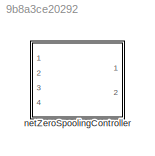
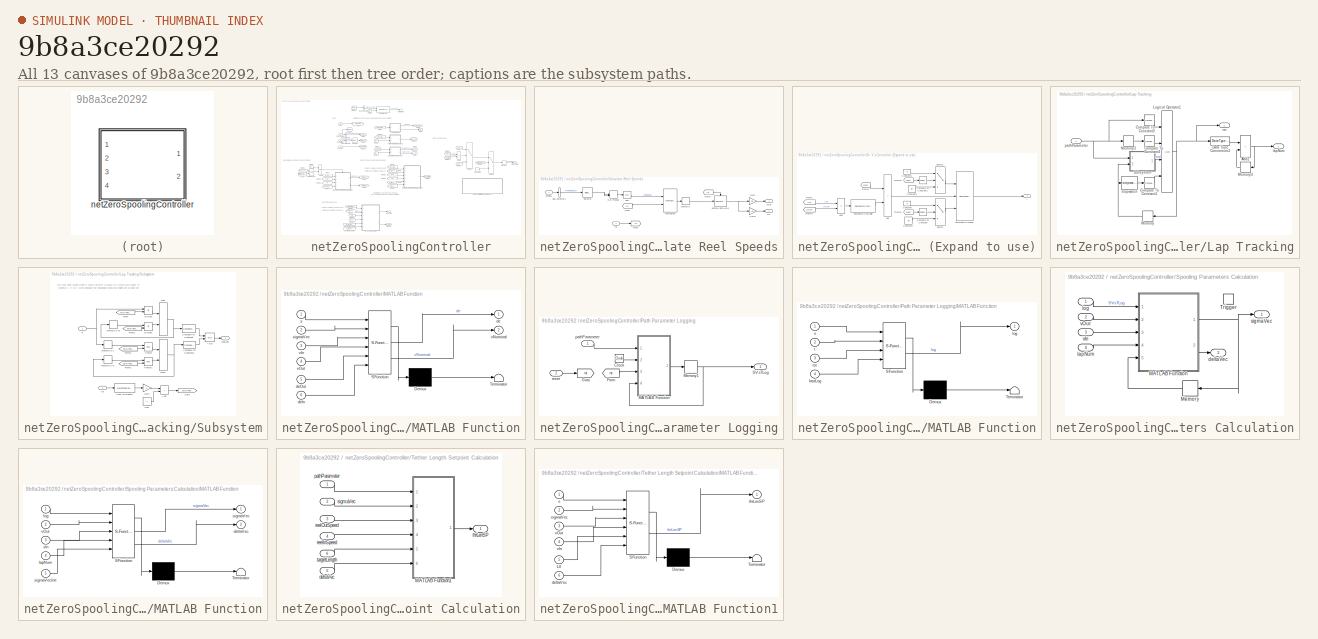
[diagram: thumbnail index - all 13 canvases of the model, root first then tree order]
MODEL slx_9b8a3ce20292
KIND library
CONFIG AbsTol = auto
CONFIG EnableMultiTasking = off
CONFIG FixedStep = auto
CONFIG MaxStep = auto
CONFIG MinStep = auto
CONFIG RelTol = 1e-3
CONFIG SampleTimeConstraint = Unconstrained
CONFIG SolverName = VariableStepAuto
CONFIG StartTime = 0.0
CONFIG StopTime = 10.0
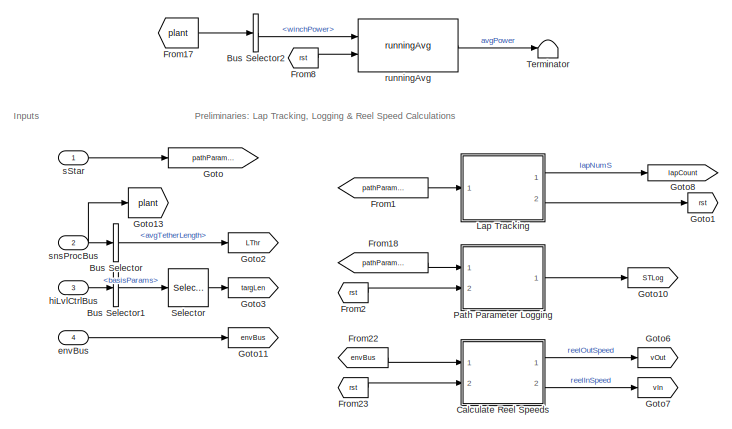
[diagram: netZeroSpoolingController - part 1/3, top center region]
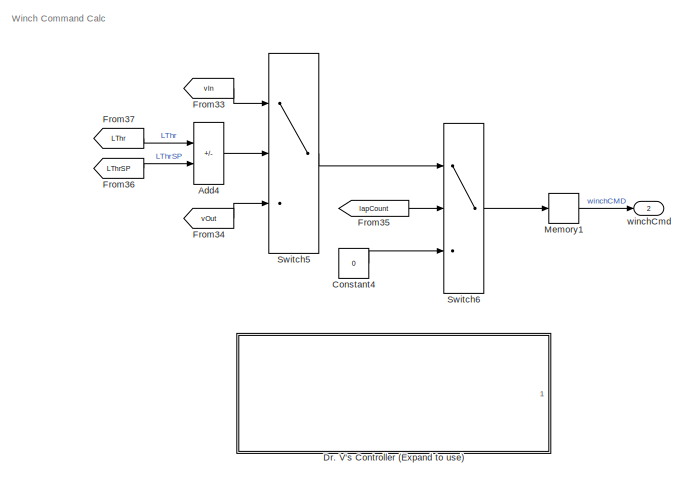
[diagram: netZeroSpoolingController - part 2/3, middle right region]
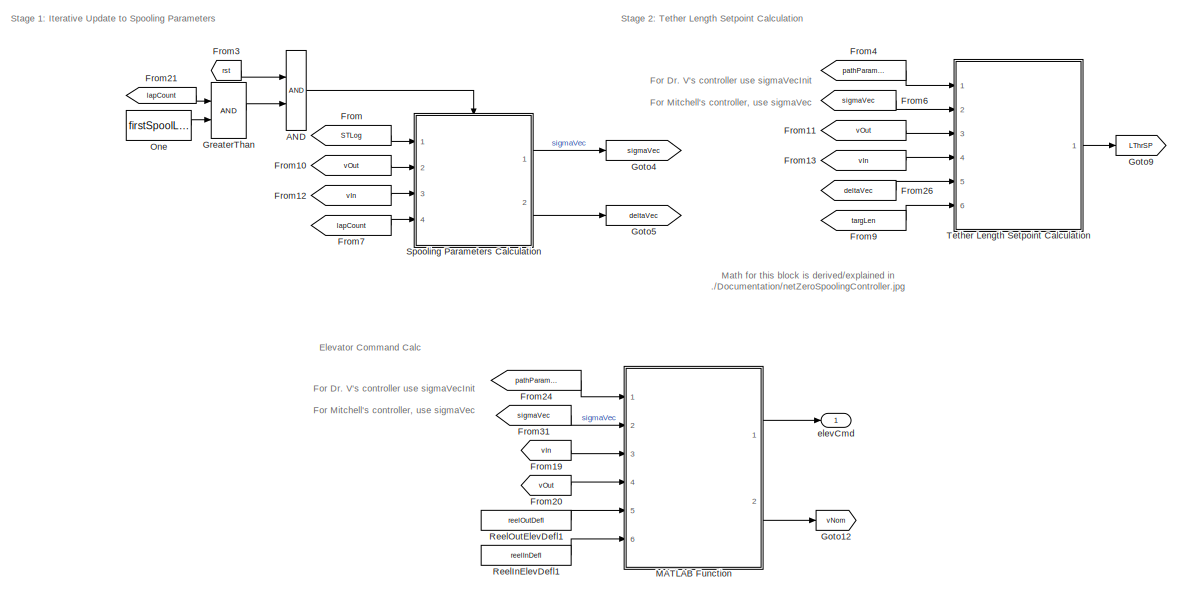
[diagram: netZeroSpoolingController - part 3/3, bottom left region]
BLOCK [SubSystem] netZeroSpoolingController
  Ports = [4, 2]
  RequestExecContextInheritance = off
  VariantControl = strcmpi(SPOOLINGCONTROLLER,'netZeroSpoolingController')
BLOCK [Logic] netZeroSpoolingController/AND
  AllPortsSameDT = off
  OutDataTypeStr = boolean
  Ports = [2, 1]
BLOCK [Sum] netZeroSpoolingController/Add4
  IconShape = rectangular
  Inputs = +-
  Ports = [2, 1]
BLOCK [BusSelector] netZeroSpoolingController/Bus Selector
  OutputSignals = avgTetherLength
  Ports = [1, 1]
BLOCK [BusSelector] netZeroSpoolingController/Bus Selector1
  OutputSignals = basisParams
  Ports = [1, 1]
BLOCK [BusSelector] netZeroSpoolingController/Bus Selector2
  OutputSignals = winchPower
  Ports = [1, 1]
BLOCK [SubSystem] netZeroSpoolingController/Calculate Reel Speeds
  Ports = [2, 2]
  RequestExecContextInheritance = off
BLOCK [BusSelector] netZeroSpoolingController/Calculate Reel Speeds/Bus Selector1
  OutputSignals = vhclFlowVecs
  Ports = [1, 1]
BLOCK [DotProduct] netZeroSpoolingController/Calculate Reel Speeds/Dot Product
  OutDataTypeStr = Inherit: Inherit via internal rule
BLOCK [From] netZeroSpoolingController/Calculate Reel Speeds/From
  GotoTag = rst
BLOCK [From] netZeroSpoolingController/Calculate Reel Speeds/From1
  GotoTag = rst
BLOCK [Gain] netZeroSpoolingController/Calculate Reel Speeds/Gain
  Gain = 1/3
BLOCK [Gain] netZeroSpoolingController/Calculate Reel Speeds/Gain1
  Gain = -0.3
BLOCK [Goto] netZeroSpoolingController/Calculate Reel Speeds/Goto
  GotoTag = rst
BLOCK [Memory] netZeroSpoolingController/Calculate Reel Speeds/Memory1
BLOCK [Reference] netZeroSpoolingController/Calculate Reel Speeds/Sample and Hold  REF=dspsigops/Sample
and Hold
  Ports = [1, 1, 0, 1]
  SourceBlock = dspsigops/Sample\nand Hold
  SourceProductBaseCode = DS
  SourceType = Sample and Hold
BLOCK [Selector] netZeroSpoolingController/Calculate Reel Speeds/Selector
  IndexOptions = Select all,Index vector (dialog)
  Indices = [1 3],5
  InputPortWidth = 3
  NumberOfDimensions = 2
  OutputSizes = 1,1
  Ports = [1, 1]
BLOCK [Sqrt] netZeroSpoolingController/Calculate Reel Speeds/Sqrt
BLOCK [Inport] netZeroSpoolingController/Calculate Reel Speeds/envBus
BLOCK [Inport] netZeroSpoolingController/Calculate Reel Speeds/rst
  Port = 2
BLOCK [Reference] netZeroSpoolingController/Calculate Reel Speeds/runningAvg  REF=runningAvg_ul/runningAvg
  Ports = [2, 1]
  SourceBlock = runningAvg_ul/runningAvg
  SourceType = SubSystem
BLOCK [Outport] netZeroSpoolingController/Calculate Reel Speeds/vIn
  Port = 2
  VectorParamsAs1DForOutWhenUnconnected = off
BLOCK [Outport] netZeroSpoolingController/Calculate Reel Speeds/vOut
  VectorParamsAs1DForOutWhenUnconnected = off
BLOCK [Constant] netZeroSpoolingController/Constant4
  Value = 0
BLOCK [SubSystem] netZeroSpoolingController/Dr. V's Controller (Expand to use)
  Commented = on
  Ports = [0, 1]
  RequestExecContextInheritance = off
BLOCK [Sum] netZeroSpoolingController/Dr. V's Controller (Expand to use)/Add
  IconShape = rectangular
  Ports = [2, 1]
BLOCK [Sum] netZeroSpoolingController/Dr. V's Controller (Expand to use)/Add1
  IconShape = rectangular
  Inputs = -+
  Ports = [2, 1]
BLOCK [Reference] netZeroSpoolingController/Dr. V's Controller (Expand to use)/Compare To Constant  REF=simulink/Logic and Bit
Operations/Compare
To Constant
  Ports = [1, 1]
  SourceBlock = simulink/Logic and Bit\nOperations/Compare\nTo Constant
  SourceProductBaseCode = SL
  SourceType = Compare To Constant
BLOCK [Reference] netZeroSpoolingController/Dr. V's Controller (Expand to use)/Compare To Constant1  REF=simulink/Logic and Bit
Operations/Compare
To Constant
  Ports = [1, 1]
  SourceBlock = simulink/Logic and Bit\nOperations/Compare\nTo Constant
  SourceProductBaseCode = SL
  SourceType = Compare To Constant
BLOCK [Constant] netZeroSpoolingController/Dr. V's Controller (Expand to use)/Constant
  Value = 0
BLOCK [Constant] netZeroSpoolingController/Dr. V's Controller (Expand to use)/Constant1
  Value = 0
BLOCK [Constant] netZeroSpoolingController/Dr. V's Controller (Expand to use)/Constant6
  Value = inf
BLOCK [Constant] netZeroSpoolingController/Dr. V's Controller (Expand to use)/Constant7
  Value = -inf
BLOCK [From] netZeroSpoolingController/Dr. V's Controller (Expand to use)/From14
  GotoTag = vNom
BLOCK [From] netZeroSpoolingController/Dr. V's Controller (Expand to use)/From15
  GotoTag = vNom
BLOCK [From] netZeroSpoolingController/Dr. V's Controller (Expand to use)/From16
  GotoTag = vNom
BLOCK [From] netZeroSpoolingController/Dr. V's Controller (Expand to use)/From27
  GotoTag = LThrSP
BLOCK [From] netZeroSpoolingController/Dr. V's Controller (Expand to use)/From5
  GotoTag = LThr
BLOCK [Reference] netZeroSpoolingController/Dr. V's Controller (Expand to use)/Saturation Dynamic  REF=simulink/Discontinuities/Saturation
Dynamic
  Ports = [3, 1]
  SourceBlock = simulink/Discontinuities/Saturation\nDynamic
  SourceProductBaseCode = SL
  SourceType = Saturation Dynamic
BLOCK [Switch] netZeroSpoolingController/Dr. V's Controller (Expand to use)/Switch
  Criteria = u2 > Threshold
  InputSameDT = off
  SaturateOnIntegerOverflow = off
BLOCK [Switch] netZeroSpoolingController/Dr. V's Controller (Expand to use)/Switch1
  Criteria = u2 > Threshold
  InputSameDT = off
  SaturateOnIntegerOverflow = off
BLOCK [Reference] netZeroSpoolingController/Dr. V's Controller (Expand to use)/filteredPIDController  REF=filteredPIDController_ul/filteredPIDController
  Ports = [1, 1]
  SourceBlock = filteredPIDController_ul/filteredPIDController
BLOCK [Outport] netZeroSpoolingController/Dr. V's Controller (Expand to use)/y
BLOCK [From] netZeroSpoolingController/From
  GotoTag = STLog
BLOCK [From] netZeroSpoolingController/From1
  GotoTag = pathParameter
BLOCK [From] netZeroSpoolingController/From10
  GotoTag = vOut
BLOCK [From] netZeroSpoolingController/From11
  GotoTag = vOut
BLOCK [From] netZeroSpoolingController/From12
  GotoTag = vIn
BLOCK [From] netZeroSpoolingController/From13
  GotoTag = vIn
BLOCK [From] netZeroSpoolingController/From17
  GotoTag = plant
BLOCK [From] netZeroSpoolingController/From18
  GotoTag = pathParameter
BLOCK [From] netZeroSpoolingController/From19
  GotoTag = vIn
BLOCK [From] netZeroSpoolingController/From2
  GotoTag = rst
BLOCK [From] netZeroSpoolingController/From20
  GotoTag = vOut
BLOCK [From] netZeroSpoolingController/From21
  GotoTag = lapCount
BLOCK [From] netZeroSpoolingController/From22
  GotoTag = envBus
BLOCK [From] netZeroSpoolingController/From23
  GotoTag = rst
BLOCK [From] netZeroSpoolingController/From24
  GotoTag = pathParameter
BLOCK [From] netZeroSpoolingController/From26
  GotoTag = deltaVec
BLOCK [From] netZeroSpoolingController/From3
  GotoTag = rst
BLOCK [From] netZeroSpoolingController/From31
  GotoTag = sigmaVec
BLOCK [From] netZeroSpoolingController/From33
  GotoTag = vIn
BLOCK [From] netZeroSpoolingController/From34
  GotoTag = vOut
BLOCK [From] netZeroSpoolingController/From35
  GotoTag = lapCount
BLOCK [From] netZeroSpoolingController/From36
  GotoTag = LThrSP
BLOCK [From] netZeroSpoolingController/From37
  GotoTag = LThr
BLOCK [From] netZeroSpoolingController/From4
  GotoTag = pathParameter
BLOCK [From] netZeroSpoolingController/From6
  GotoTag = sigmaVec
BLOCK [From] netZeroSpoolingController/From7
  GotoTag = lapCount
BLOCK [From] netZeroSpoolingController/From8
  GotoTag = rst
BLOCK [From] netZeroSpoolingController/From9
  GotoTag = targLen
BLOCK [Goto] netZeroSpoolingController/Goto
  GotoTag = pathParameter
BLOCK [Goto] netZeroSpoolingController/Goto1
  GotoTag = rst
BLOCK [Goto] netZeroSpoolingController/Goto10
  GotoTag = STLog
BLOCK [Goto] netZeroSpoolingController/Goto11
  GotoTag = envBus
BLOCK [Goto] netZeroSpoolingController/Goto12
  Commented = on
  GotoTag = vNom
BLOCK [Goto] netZeroSpoolingController/Goto13
  GotoTag = plant
BLOCK [Goto] netZeroSpoolingController/Goto2
  GotoTag = LThr
BLOCK [Goto] netZeroSpoolingController/Goto3
  GotoTag = targLen
BLOCK [Goto] netZeroSpoolingController/Goto4
  GotoTag = sigmaVec
BLOCK [Goto] netZeroSpoolingController/Goto5
  GotoTag = deltaVec
BLOCK [Goto] netZeroSpoolingController/Goto6
  GotoTag = vOut
BLOCK [Goto] netZeroSpoolingController/Goto7
  GotoTag = vIn
BLOCK [Goto] netZeroSpoolingController/Goto8
  GotoTag = lapCount
BLOCK [Goto] netZeroSpoolingController/Goto9
  GotoTag = LThrSP
BLOCK [RelationalOperator] netZeroSpoolingController/GreaterThan
  InputSameDT = off
  OutDataTypeStr = boolean
  Ports = [2, 1]
  RndMeth = Simplest
BLOCK [SubSystem] netZeroSpoolingController/Lap Tracking
  Ports = [1, 2]
  RequestExecContextInheritance = off
BLOCK [Sum] netZeroSpoolingController/Lap Tracking/Add2
  IconShape = rectangular
  Ports = [2, 1]
BLOCK [Reference] netZeroSpoolingController/Lap Tracking/Compare To Constant1  REF=simulink/Logic and Bit
Operations/Compare
To Constant
  Ports = [1, 1]
  SourceBlock = simulink/Logic and Bit\nOperations/Compare\nTo Constant
  SourceProductBaseCode = SL
  SourceType = Compare To Constant
BLOCK [Reference] netZeroSpoolingController/Lap Tracking/Compare To Constant3  REF=simulink/Logic and Bit
Operations/Compare
To Constant
  Ports = [1, 1]
  SourceBlock = simulink/Logic and Bit\nOperations/Compare\nTo Constant
  SourceProductBaseCode = SL
  SourceType = Compare To Constant
BLOCK [Reference] netZeroSpoolingController/Lap Tracking/Compare To Constant4  REF=simulink/Logic and Bit
Operations/Compare
To Constant
  Ports = [1, 1]
  SourceBlock = simulink/Logic and Bit\nOperations/Compare\nTo Constant
  SourceProductBaseCode = SL
  SourceType = Compare To Constant
BLOCK [DataTypeConversion] netZeroSpoolingController/Lap Tracking/Data Type Conversion2
  OutDataTypeStr = double
  RndMeth = Floor
  SaturateOnIntegerOverflow = off
BLOCK [Logic] netZeroSpoolingController/Lap Tracking/Logical Operator1
  AllPortsSameDT = off
  Inputs = 4
  OutDataTypeStr = boolean
  Ports = [4, 1]
BLOCK [Memory] netZeroSpoolingController/Lap Tracking/Memory
  InitialCondition = false
BLOCK [Memory] netZeroSpoolingController/Lap Tracking/Memory3
BLOCK [Memory] netZeroSpoolingController/Lap Tracking/Memory4
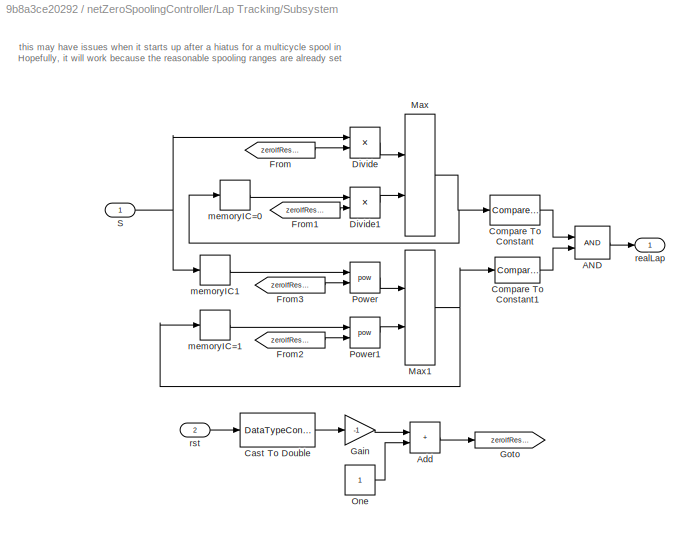
BLOCK [SubSystem] netZeroSpoolingController/Lap Tracking/Subsystem
  Ports = [2, 1]
  RequestExecContextInheritance = off
BLOCK [Logic] netZeroSpoolingController/Lap Tracking/Subsystem/AND
  AllPortsSameDT = off
  OutDataTypeStr = boolean
  Ports = [2, 1]
BLOCK [Sum] netZeroSpoolingController/Lap Tracking/Subsystem/Add
  IconShape = rectangular
  Ports = [2, 1]
BLOCK [DataTypeConversion] netZeroSpoolingController/Lap Tracking/Subsystem/Cast To Double
  OutDataTypeStr = double
  RndMeth = Floor
  SaturateOnIntegerOverflow = off
BLOCK [Reference] netZeroSpoolingController/Lap Tracking/Subsystem/Compare To Constant  REF=simulink/Logic and Bit
Operations/Compare
To Constant
  Ports = [1, 1]
  SourceBlock = simulink/Logic and Bit\nOperations/Compare\nTo Constant
  SourceProductBaseCode = SL
  SourceType = Compare To Constant
BLOCK [Reference] netZeroSpoolingController/Lap Tracking/Subsystem/Compare To Constant1  REF=simulink/Logic and Bit
Operations/Compare
To Constant
  Ports = [1, 1]
  SourceBlock = simulink/Logic and Bit\nOperations/Compare\nTo Constant
  SourceProductBaseCode = SL
  SourceType = Compare To Constant
BLOCK [Product] netZeroSpoolingController/Lap Tracking/Subsystem/Divide
  Inputs = **
  Ports = [2, 1]
BLOCK [Product] netZeroSpoolingController/Lap Tracking/Subsystem/Divide1
  Inputs = **
  Ports = [2, 1]
BLOCK [From] netZeroSpoolingController/Lap Tracking/Subsystem/From
  GotoTag = zeroIfReset
BLOCK [From] netZeroSpoolingController/Lap Tracking/Subsystem/From1
  GotoTag = zeroIfReset
BLOCK [From] netZeroSpoolingController/Lap Tracking/Subsystem/From2
  GotoTag = zeroIfReset
BLOCK [From] netZeroSpoolingController/Lap Tracking/Subsystem/From3
  GotoTag = zeroIfReset
BLOCK [Gain] netZeroSpoolingController/Lap Tracking/Subsystem/Gain
  Gain = -1
BLOCK [Goto] netZeroSpoolingController/Lap Tracking/Subsystem/Goto
  GotoTag = zeroIfReset
BLOCK [MinMax] netZeroSpoolingController/Lap Tracking/Subsystem/Max
  Function = max
  Inputs = 2
  Ports = [2, 1]
BLOCK [MinMax] netZeroSpoolingController/Lap Tracking/Subsystem/Max1
  Inputs = 2
  Ports = [2, 1]
BLOCK [Constant] netZeroSpoolingController/Lap Tracking/Subsystem/One
  OutDataTypeStr = Inherit: Inherit via back propagation
BLOCK [Math] netZeroSpoolingController/Lap Tracking/Subsystem/Power
  Operator = pow
  Ports = [2, 1]
BLOCK [Math] netZeroSpoolingController/Lap Tracking/Subsystem/Power1
  Operator = pow
  Ports = [2, 1]
BLOCK [Inport] netZeroSpoolingController/Lap Tracking/Subsystem/S
BLOCK [Memory] netZeroSpoolingController/Lap Tracking/Subsystem/memoryIC1
  InitialCondition = 1
BLOCK [Memory] netZeroSpoolingController/Lap Tracking/Subsystem/memoryIC=0
BLOCK [Memory] netZeroSpoolingController/Lap Tracking/Subsystem/memoryIC=1
  InitialCondition = 1
BLOCK [Outport] netZeroSpoolingController/Lap Tracking/Subsystem/realLap
BLOCK [Inport] netZeroSpoolingController/Lap Tracking/Subsystem/rst
  Port = 2
BLOCK [Outport] netZeroSpoolingController/Lap Tracking/lapNum
  VectorParamsAs1DForOutWhenUnconnected = off
BLOCK [Inport] netZeroSpoolingController/Lap Tracking/pathParameter
BLOCK [Outport] netZeroSpoolingController/Lap Tracking/rst
  Port = 2
  VectorParamsAs1DForOutWhenUnconnected = off
BLOCK [Reference] netZeroSpoolingController/Lap Tracking/stopwatch  REF=stopwatch_ul/stopwatch  (lib defined in slx_5231e8830116, slx_6b86a6863970)
  Ports = [1, 1]
  SourceBlock = stopwatch_ul/stopwatch
  SourceType = SubSystem
BLOCK [SubSystem] netZeroSpoolingController/MATLAB Function
  ErrorFcn = Stateflow.Translate.translate
  PermitHierarchicalResolution = ExplicitOnly
  Ports = [6, 2]
  RequestExecContextInheritance = off
  SFBlockType = MATLAB Function
  TreatAsAtomicUnit = on
BLOCK [Demux] netZeroSpoolingController/MATLAB Function/ Demux 
  Outputs = 1
  Ports = [1, 1]
BLOCK [S-Function] netZeroSpoolingController/MATLAB Function/ SFunction 
  EnableBusSupport = off
  FunctionName = sf_sfun
  PortCounts = [6 3]
  Ports = [6, 3]
  SFcnIsStateOwnerBlock = off
  SFunctionDeploymentMode = off
  Tag = Stateflow S-Function 4
BLOCK [Terminator] netZeroSpoolingController/MATLAB Function/ Terminator 
BLOCK [Outport] netZeroSpoolingController/MATLAB Function/de
  VectorParamsAs1DForOutWhenUnconnected = off
BLOCK [Inport] netZeroSpoolingController/MATLAB Function/deIn
  Port = 6
BLOCK [Inport] netZeroSpoolingController/MATLAB Function/deOut
  Port = 5
BLOCK [Inport] netZeroSpoolingController/MATLAB Function/s
BLOCK [Inport] netZeroSpoolingController/MATLAB Function/sigmaVec
  Port = 2
BLOCK [Inport] netZeroSpoolingController/MATLAB Function/vIn
  Port = 3
BLOCK [Outport] netZeroSpoolingController/MATLAB Function/vNominal
  Port = 2
  VectorParamsAs1DForOutWhenUnconnected = off
BLOCK [Inport] netZeroSpoolingController/MATLAB Function/vOut
  Port = 4
BLOCK [Memory] netZeroSpoolingController/Memory1
BLOCK [Constant] netZeroSpoolingController/One
  OutDataTypeStr = Inherit: Inherit via back propagation
  Value = firstSpoolLap
BLOCK [SubSystem] netZeroSpoolingController/Path Parameter Logging
  Ports = [2, 1]
  RequestExecContextInheritance = off
BLOCK [Clock] netZeroSpoolingController/Path Parameter Logging/Clock
BLOCK [From] netZeroSpoolingController/Path Parameter Logging/From
  GotoTag = rst
BLOCK [Goto] netZeroSpoolingController/Path Parameter Logging/Goto
  GotoTag = rst
BLOCK [SubSystem] netZeroSpoolingController/Path Parameter Logging/MATLAB Function
  ErrorFcn = Stateflow.Translate.translate
  PermitHierarchicalResolution = ExplicitOnly
  Ports = [4, 1]
  RequestExecContextInheritance = off
  SFBlockType = MATLAB Function
  TreatAsAtomicUnit = on
BLOCK [Demux] netZeroSpoolingController/Path Parameter Logging/MATLAB Function/ Demux 
  Outputs = 1
  Ports = [1, 1]
BLOCK [S-Function] netZeroSpoolingController/Path Parameter Logging/MATLAB Function/ SFunction 
  EnableBusSupport = off
  FunctionName = sf_sfun
  PortCounts = [4 2]
  Ports = [4, 2]
  SFcnIsStateOwnerBlock = off
  SFunctionDeploymentMode = off
  Tag = Stateflow S-Function 2
BLOCK [Terminator] netZeroSpoolingController/Path Parameter Logging/MATLAB Function/ Terminator 
BLOCK [Inport] netZeroSpoolingController/Path Parameter Logging/MATLAB Function/lastLog
  Port = 4
BLOCK [Outport] netZeroSpoolingController/Path Parameter Logging/MATLAB Function/log
  VectorParamsAs1DForOutWhenUnconnected = off
BLOCK [Inport] netZeroSpoolingController/Path Parameter Logging/MATLAB Function/rst
  Port = 3
BLOCK [Inport] netZeroSpoolingController/Path Parameter Logging/MATLAB Function/s
BLOCK [Inport] netZeroSpoolingController/Path Parameter Logging/MATLAB Function/t
  Port = 2
BLOCK [Memory] netZeroSpoolingController/Path Parameter Logging/Memory1
  InitialCondition = zeros(1000,2)
BLOCK [Outport] netZeroSpoolingController/Path Parameter Logging/SVsTLog
  VectorParamsAs1DForOutWhenUnconnected = off
BLOCK [Inport] netZeroSpoolingController/Path Parameter Logging/pathParameter
BLOCK [Inport] netZeroSpoolingController/Path Parameter Logging/reset
  Port = 2
BLOCK [Constant] netZeroSpoolingController/ReelInElevDefl1
  Value = reelInDefl
BLOCK [Constant] netZeroSpoolingController/ReelOutElevDefl1
  Value = reelOutDefl
BLOCK [Selector] netZeroSpoolingController/Selector
  IndexOptions = Index vector (dialog)
  Indices = 5
  InputPortWidth = 5
  OutputSizes = 1
  Ports = [1, 1]
BLOCK [SubSystem] netZeroSpoolingController/Spooling Parameters Calculation
  Ports = [4, 2, 0, 1]
  RequestExecContextInheritance = off
  TreatAsAtomicUnit = on
BLOCK [SubSystem] netZeroSpoolingController/Spooling Parameters Calculation/MATLAB Function
  ErrorFcn = Stateflow.Translate.translate
  PermitHierarchicalResolution = ExplicitOnly
  Ports = [5, 2]
  RequestExecContextInheritance = off
  SFBlockType = MATLAB Function
  TreatAsAtomicUnit = on
BLOCK [Demux] netZeroSpoolingController/Spooling Parameters Calculation/MATLAB Function/ Demux 
  Outputs = 1
  Ports = [1, 1]
BLOCK [S-Function] netZeroSpoolingController/Spooling Parameters Calculation/MATLAB Function/ SFunction 
  EnableBusSupport = off
  FunctionName = sf_sfun
  PortCounts = [5 3]
  Ports = [5, 3]
  SFcnIsStateOwnerBlock = off
  SFunctionDeploymentMode = off
  Tag = Stateflow S-Function 1
BLOCK [Terminator] netZeroSpoolingController/Spooling Parameters Calculation/MATLAB Function/ Terminator 
BLOCK [Outport] netZeroSpoolingController/Spooling Parameters Calculation/MATLAB Function/deltaVec
  Port = 2
  VectorParamsAs1DForOutWhenUnconnected = off
BLOCK [Inport] netZeroSpoolingController/Spooling Parameters Calculation/MATLAB Function/lapNum
  Port = 4
BLOCK [Inport] netZeroSpoolingController/Spooling Parameters Calculation/MATLAB Function/log
BLOCK [Outport] netZeroSpoolingController/Spooling Parameters Calculation/MATLAB Function/sigmaVec
  VectorParamsAs1DForOutWhenUnconnected = off
BLOCK [Inport] netZeroSpoolingController/Spooling Parameters Calculation/MATLAB Function/sigmaVecInit
  Port = 5
BLOCK [Inport] netZeroSpoolingController/Spooling Parameters Calculation/MATLAB Function/vIn
  Port = 3
BLOCK [Inport] netZeroSpoolingController/Spooling Parameters Calculation/MATLAB Function/vOut
  Port = 2
BLOCK [Memory] netZeroSpoolingController/Spooling Parameters Calculation/Memory
  InheritSampleTime = on
  InitialCondition = sigmaVecInit
BLOCK [TriggerPort] netZeroSpoolingController/Spooling Parameters Calculation/Trigger
  Ports = []
  StatesWhenEnabling = held
  VariantControl = Variant
BLOCK [Outport] netZeroSpoolingController/Spooling Parameters Calculation/deltaVec
  InitialOutput = [0.0136    0.0097    0.0198    0.0152    0.0208]
  Port = 2
  VectorParamsAs1DForOutWhenUnconnected = off
BLOCK [Inport] netZeroSpoolingController/Spooling Parameters Calculation/lapNum
  Port = 4
BLOCK [Inport] netZeroSpoolingController/Spooling Parameters Calculation/log
BLOCK [Outport] netZeroSpoolingController/Spooling Parameters Calculation/sigmaVec
  InitialOutput = sigmaVecInit
  VectorParamsAs1DForOutWhenUnconnected = off
BLOCK [Inport] netZeroSpoolingController/Spooling Parameters Calculation/vIn
  Port = 3
BLOCK [Inport] netZeroSpoolingController/Spooling Parameters Calculation/vOut
  Port = 2
BLOCK [Switch] netZeroSpoolingController/Switch5
  Criteria = u2 > Threshold
  InputSameDT = off
  SaturateOnIntegerOverflow = off
BLOCK [Switch] netZeroSpoolingController/Switch6
  InputSameDT = off
  SaturateOnIntegerOverflow = off
  Threshold = firstSpoolLap
BLOCK [Terminator] netZeroSpoolingController/Terminator
BLOCK [SubSystem] netZeroSpoolingController/Tether Length Setpoint Calculation
  Ports = [6, 1]
  RequestExecContextInheritance = off
BLOCK [SubSystem] netZeroSpoolingController/Tether Length Setpoint Calculation/MATLAB Function1
  ErrorFcn = Stateflow.Translate.translate
  PermitHierarchicalResolution = ExplicitOnly
  Ports = [6, 1]
  RequestExecContextInheritance = off
  SFBlockType = MATLAB Function
  TreatAsAtomicUnit = on
BLOCK [Demux] netZeroSpoolingController/Tether Length Setpoint Calculation/MATLAB Function1/ Demux 
  Outputs = 1
  Ports = [1, 1]
BLOCK [S-Function] netZeroSpoolingController/Tether Length Setpoint Calculation/MATLAB Function1/ SFunction 
  EnableBusSupport = off
  FunctionName = sf_sfun
  PortCounts = [6 2]
  Ports = [6, 2]
  SFcnIsStateOwnerBlock = off
  SFunctionDeploymentMode = off
  Tag = Stateflow S-Function 3
BLOCK [Terminator] netZeroSpoolingController/Tether Length Setpoint Calculation/MATLAB Function1/ Terminator 
BLOCK [Inport] netZeroSpoolingController/Tether Length Setpoint Calculation/MATLAB Function1/L0
  Port = 5
BLOCK [Inport] netZeroSpoolingController/Tether Length Setpoint Calculation/MATLAB Function1/deltaVec
  Port = 6
BLOCK [Inport] netZeroSpoolingController/Tether Length Setpoint Calculation/MATLAB Function1/s
BLOCK [Inport] netZeroSpoolingController/Tether Length Setpoint Calculation/MATLAB Function1/sigmaVec
  Port = 2
BLOCK [Outport] netZeroSpoolingController/Tether Length Setpoint Calculation/MATLAB Function1/thrLenSP
  VectorParamsAs1DForOutWhenUnconnected = off
BLOCK [Inport] netZeroSpoolingController/Tether Length Setpoint Calculation/MATLAB Function1/vIn
  Port = 4
BLOCK [Inport] netZeroSpoolingController/Tether Length Setpoint Calculation/MATLAB Function1/vOut
  Port = 3
BLOCK [Inport] netZeroSpoolingController/Tether Length Setpoint Calculation/deltaVec
  Port = 5
BLOCK [Inport] netZeroSpoolingController/Tether Length Setpoint Calculation/pathParameter
BLOCK [Inport] netZeroSpoolingController/Tether Length Setpoint Calculation/reelInSpeed
  Port = 4
BLOCK [Inport] netZeroSpoolingController/Tether Length Setpoint Calculation/reelOutSpeed
  Port = 3
BLOCK [Inport] netZeroSpoolingController/Tether Length Setpoint Calculation/sigmaVec
  Port = 2
BLOCK [Inport] netZeroSpoolingController/Tether Length Setpoint Calculation/targetLength
  Port = 6
BLOCK [Outport] netZeroSpoolingController/Tether Length Setpoint Calculation/thrLenSP
  VectorParamsAs1DForOutWhenUnconnected = off
BLOCK [Outport] netZeroSpoolingController/elevCmd
  VectorParamsAs1DForOutWhenUnconnected = off
BLOCK [Inport] netZeroSpoolingController/envBus
  OutDataTypeStr = Bus: envBus
  Port = 4
BLOCK [Inport] netZeroSpoolingController/hiLvlCtrlBus
  OutDataTypeStr = Bus: hiLvlCtrlBus
  Port = 3
BLOCK [Reference] netZeroSpoolingController/runningAvg  REF=runningAvg_ul/runningAvg
  Ports = [2, 1]
  SourceBlock = runningAvg_ul/runningAvg
  SourceType = SubSystem
BLOCK [Inport] netZeroSpoolingController/sStar 
BLOCK [Inport] netZeroSpoolingController/snsProcBus
  OutDataTypeStr = Bus: sensorsProcessingBus
  Port = 2
BLOCK [Outport] netZeroSpoolingController/winchCmd 
  Port = 2
  VectorParamsAs1DForOutWhenUnconnected = off
ANNOTATION netZeroSpoolingController: Math for this block is derived/explained in ./Documentation/netZeroSpoolingController.jpg
ANNOTATION netZeroSpoolingController: Elevator Command Calc
ANNOTATION netZeroSpoolingController: For Dr. V's controller use sigmaVecInit For Mitchell's controller, use sigmaVec
ANNOTATION netZeroSpoolingController: Inputs
ANNOTATION netZeroSpoolingController: Preliminaries: Lap Tracking, Logging & Reel Speed Calculations
ANNOTATION netZeroSpoolingController: Stage 1: Iterative Update to Spooling Parameters
ANNOTATION netZeroSpoolingController: Stage 2: Tether Length Setpoint Calculation
ANNOTATION netZeroSpoolingController: Winch Command Calc
ANNOTATION netZeroSpoolingController/Lap Tracking/Subsystem: this may have issues when it starts up after a hiatus for a multicycle spool in Hopefully, it will work because the reasonable spooling ranges are already set
LINE netZeroSpoolingController/AND:1 -> netZeroSpoolingController/Spooling Parameters Calculation:trigger
LINE netZeroSpoolingController/Add4:1 -> netZeroSpoolingController/Switch5:2
LINE netZeroSpoolingController/Bus Selector1:1 -> netZeroSpoolingController/Selector:1
LINE netZeroSpoolingController/Bus Selector2:1 -> netZeroSpoolingController/runningAvg:1
LINE netZeroSpoolingController/Bus Selector:1 -> netZeroSpoolingController/Goto2:1
LINE netZeroSpoolingController/Calculate Reel Speeds/Bus Selector1:1 -> netZeroSpoolingController/Calculate Reel Speeds/Selector:1
LINE netZeroSpoolingController/Calculate Reel Speeds/Dot Product:1 -> netZeroSpoolingController/Calculate Reel Speeds/Sqrt:1
LINE netZeroSpoolingController/Calculate Reel Speeds/From1:1 -> netZeroSpoolingController/Calculate Reel Speeds/Sample and Hold:trigger
LINE netZeroSpoolingController/Calculate Reel Speeds/From:1 -> netZeroSpoolingController/Calculate Reel Speeds/runningAvg:2
LINE netZeroSpoolingController/Calculate Reel Speeds/Gain1:1 -> netZeroSpoolingController/Calculate Reel Speeds/vIn:1
LINE netZeroSpoolingController/Calculate Reel Speeds/Gain:1 -> netZeroSpoolingController/Calculate Reel Speeds/vOut:1
LINE netZeroSpoolingController/Calculate Reel Speeds/Memory1:1 -> netZeroSpoolingController/Calculate Reel Speeds/Sample and Hold:1
NET netZeroSpoolingController/Calculate Reel Speeds/Sample and Hold:1 -> netZeroSpoolingController/Calculate Reel Speeds/Gain1:1, netZeroSpoolingController/Calculate Reel Speeds/Gain:1
NET netZeroSpoolingController/Calculate Reel Speeds/Selector:1 -> netZeroSpoolingController/Calculate Reel Speeds/Dot Product:1, netZeroSpoolingController/Calculate Reel Speeds/Dot Product:2
LINE netZeroSpoolingController/Calculate Reel Speeds/Sqrt:1 -> netZeroSpoolingController/Calculate Reel Speeds/runningAvg:1
LINE netZeroSpoolingController/Calculate Reel Speeds/envBus:1 -> netZeroSpoolingController/Calculate Reel Speeds/Bus Selector1:1
LINE netZeroSpoolingController/Calculate Reel Speeds/rst:1 -> netZeroSpoolingController/Calculate Reel Speeds/Goto:1
LINE netZeroSpoolingController/Calculate Reel Speeds/runningAvg:1 -> netZeroSpoolingController/Calculate Reel Speeds/Memory1:1
LINE netZeroSpoolingController/Calculate Reel Speeds:1 -> netZeroSpoolingController/Goto6:1
LINE netZeroSpoolingController/Calculate Reel Speeds:2 -> netZeroSpoolingController/Goto7:1
LINE netZeroSpoolingController/Constant4:1 -> netZeroSpoolingController/Switch6:3
LINE netZeroSpoolingController/Dr. V's Controller (Expand to use)/Add1:1 -> netZeroSpoolingController/Dr. V's Controller (Expand to use)/filteredPIDController:1
LINE netZeroSpoolingController/Dr. V's Controller (Expand to use)/Add:1 -> netZeroSpoolingController/Dr. V's Controller (Expand to use)/Saturation Dynamic:2
LINE netZeroSpoolingController/Dr. V's Controller (Expand to use)/Compare To Constant1:1 -> netZeroSpoolingController/Dr. V's Controller (Expand to use)/Switch1:2
LINE netZeroSpoolingController/Dr. V's Controller (Expand to use)/Compare To Constant:1 -> netZeroSpoolingController/Dr. V's Controller (Expand to use)/Switch:2
LINE netZeroSpoolingController/Dr. V's Controller (Expand to use)/Constant1:1 -> netZeroSpoolingController/Dr. V's Controller (Expand to use)/Switch1:1
LINE netZeroSpoolingController/Dr. V's Controller (Expand to use)/Constant6:1 -> netZeroSpoolingController/Dr. V's Controller (Expand to use)/Switch1:3
LINE netZeroSpoolingController/Dr. V's Controller (Expand to use)/Constant7:1 -> netZeroSpoolingController/Dr. V's Controller (Expand to use)/Switch:3
LINE netZeroSpoolingController/Dr. V's Controller (Expand to use)/Constant:1 -> netZeroSpoolingController/Dr. V's Controller (Expand to use)/Switch:1
LINE netZeroSpoolingController/Dr. V's Controller (Expand to use)/From14:1 -> netZeroSpoolingController/Dr. V's Controller (Expand to use)/Add:1
LINE netZeroSpoolingController/Dr. V's Controller (Expand to use)/From15:1 -> netZeroSpoolingController/Dr. V's Controller (Expand to use)/Compare To Constant:1
LINE netZeroSpoolingController/Dr. V's Controller (Expand to use)/From16:1 -> netZeroSpoolingController/Dr. V's Controller (Expand to use)/Compare To Constant1:1
LINE netZeroSpoolingController/Dr. V's Controller (Expand to use)/From27:1 -> netZeroSpoolingController/Dr. V's Controller (Expand to use)/Add1:2
LINE netZeroSpoolingController/Dr. V's Controller (Expand to use)/From5:1 -> netZeroSpoolingController/Dr. V's Controller (Expand to use)/Add1:1
LINE netZeroSpoolingController/Dr. V's Controller (Expand to use)/Saturation Dynamic:1 -> netZeroSpoolingController/Dr. V's Controller (Expand to use)/y:1
LINE netZeroSpoolingController/Dr. V's Controller (Expand to use)/Switch1:1 -> netZeroSpoolingController/Dr. V's Controller (Expand to use)/Saturation Dynamic:1
LINE netZeroSpoolingController/Dr. V's Controller (Expand to use)/Switch:1 -> netZeroSpoolingController/Dr. V's Controller (Expand to use)/Saturation Dynamic:3
LINE netZeroSpoolingController/Dr. V's Controller (Expand to use)/filteredPIDController:1 -> netZeroSpoolingController/Dr. V's Controller (Expand to use)/Add:2
LINE netZeroSpoolingController/From10:1 -> netZeroSpoolingController/Spooling Parameters Calculation:2
LINE netZeroSpoolingController/From11:1 -> netZeroSpoolingController/Tether Length Setpoint Calculation:3
LINE netZeroSpoolingController/From12:1 -> netZeroSpoolingController/Spooling Parameters Calculation:3
LINE netZeroSpoolingController/From13:1 -> netZeroSpoolingController/Tether Length Setpoint Calculation:4
LINE netZeroSpoolingController/From17:1 -> netZeroSpoolingController/Bus Selector2:1
LINE netZeroSpoolingController/From18:1 -> netZeroSpoolingController/Path Parameter Logging:1
LINE netZeroSpoolingController/From19:1 -> netZeroSpoolingController/MATLAB Function:3
LINE netZeroSpoolingController/From1:1 -> netZeroSpoolingController/Lap Tracking:1
LINE netZeroSpoolingController/From20:1 -> netZeroSpoolingController/MATLAB Function:4
LINE netZeroSpoolingController/From21:1 -> netZeroSpoolingController/GreaterThan:1
LINE netZeroSpoolingController/From22:1 -> netZeroSpoolingController/Calculate Reel Speeds:1
LINE netZeroSpoolingController/From23:1 -> netZeroSpoolingController/Calculate Reel Speeds:2
LINE netZeroSpoolingController/From24:1 -> netZeroSpoolingController/MATLAB Function:1
LINE netZeroSpoolingController/From26:1 -> netZeroSpoolingController/Tether Length Setpoint Calculation:5
LINE netZeroSpoolingController/From2:1 -> netZeroSpoolingController/Path Parameter Logging:2
LINE netZeroSpoolingController/From31:1 -> netZeroSpoolingController/MATLAB Function:2
LINE netZeroSpoolingController/From33:1 -> netZeroSpoolingController/Switch5:1
LINE netZeroSpoolingController/From34:1 -> netZeroSpoolingController/Switch5:3
LINE netZeroSpoolingController/From35:1 -> netZeroSpoolingController/Switch6:2
LINE netZeroSpoolingController/From36:1 -> netZeroSpoolingController/Add4:2
LINE netZeroSpoolingController/From37:1 -> netZeroSpoolingController/Add4:1
LINE netZeroSpoolingController/From3:1 -> netZeroSpoolingController/AND:1
LINE netZeroSpoolingController/From4:1 -> netZeroSpoolingController/Tether Length Setpoint Calculation:1
LINE netZeroSpoolingController/From6:1 -> netZeroSpoolingController/Tether Length Setpoint Calculation:2
LINE netZeroSpoolingController/From7:1 -> netZeroSpoolingController/Spooling Parameters Calculation:4
LINE netZeroSpoolingController/From8:1 -> netZeroSpoolingController/runningAvg:2
LINE netZeroSpoolingController/From9:1 -> netZeroSpoolingController/Tether Length Setpoint Calculation:6
LINE netZeroSpoolingController/From:1 -> netZeroSpoolingController/Spooling Parameters Calculation:1
LINE netZeroSpoolingController/GreaterThan:1 -> netZeroSpoolingController/AND:2
NET netZeroSpoolingController/Lap Tracking/Add2:1 -> netZeroSpoolingController/Lap Tracking/Memory4:1, netZeroSpoolingController/Lap Tracking/lapNum:1
LINE netZeroSpoolingController/Lap Tracking/Compare To Constant1:1 -> netZeroSpoolingController/Lap Tracking/Logical Operator1:4
LINE netZeroSpoolingController/Lap Tracking/Compare To Constant3:1 -> netZeroSpoolingController/Lap Tracking/Logical Operator1:1
LINE netZeroSpoolingController/Lap Tracking/Compare To Constant4:1 -> netZeroSpoolingController/Lap Tracking/Logical Operator1:2
LINE netZeroSpoolingController/Lap Tracking/Data Type Conversion2:1 -> netZeroSpoolingController/Lap Tracking/Add2:1
NET netZeroSpoolingController/Lap Tracking/Logical Operator1:1 -> netZeroSpoolingController/Lap Tracking/Data Type Conversion2:1, netZeroSpoolingController/Lap Tracking/Memory:1, netZeroSpoolingController/Lap Tracking/rst:1
LINE netZeroSpoolingController/Lap Tracking/Memory3:1 -> netZeroSpoolingController/Lap Tracking/Compare To Constant4:1
LINE netZeroSpoolingController/Lap Tracking/Memory4:1 -> netZeroSpoolingController/Lap Tracking/Add2:2
NET netZeroSpoolingController/Lap Tracking/Memory:1 -> netZeroSpoolingController/Lap Tracking/Subsystem:2, netZeroSpoolingController/Lap Tracking/stopwatch:1
LINE netZeroSpoolingController/Lap Tracking/Subsystem/AND:1 -> netZeroSpoolingController/Lap Tracking/Subsystem/realLap:1
LINE netZeroSpoolingController/Lap Tracking/Subsystem/Add:1 -> netZeroSpoolingController/Lap Tracking/Subsystem/Goto:1
LINE netZeroSpoolingController/Lap Tracking/Subsystem/Cast To Double:1 -> netZeroSpoolingController/Lap Tracking/Subsystem/Gain:1
LINE netZeroSpoolingController/Lap Tracking/Subsystem/Compare To Constant1:1 -> netZeroSpoolingController/Lap Tracking/Subsystem/AND:2
LINE netZeroSpoolingController/Lap Tracking/Subsystem/Compare To Constant:1 -> netZeroSpoolingController/Lap Tracking/Subsystem/AND:1
LINE netZeroSpoolingController/Lap Tracking/Subsystem/Divide1:1 -> netZeroSpoolingController/Lap Tracking/Subsystem/Max:2
LINE netZeroSpoolingController/Lap Tracking/Subsystem/Divide:1 -> netZeroSpoolingController/Lap Tracking/Subsystem/Max:1
LINE netZeroSpoolingController/Lap Tracking/Subsystem/From1:1 -> netZeroSpoolingController/Lap Tracking/Subsystem/Divide1:2
LINE netZeroSpoolingController/Lap Tracking/Subsystem/From2:1 -> netZeroSpoolingController/Lap Tracking/Subsystem/Power1:2
LINE netZeroSpoolingController/Lap Tracking/Subsystem/From3:1 -> netZeroSpoolingController/Lap Tracking/Subsystem/Power:2
LINE netZeroSpoolingController/Lap Tracking/Subsystem/From:1 -> netZeroSpoolingController/Lap Tracking/Subsystem/Divide:2
LINE netZeroSpoolingController/Lap Tracking/Subsystem/Gain:1 -> netZeroSpoolingController/Lap Tracking/Subsystem/Add:1
NET netZeroSpoolingController/Lap Tracking/Subsystem/Max1:1 -> netZeroSpoolingController/Lap Tracking/Subsystem/Compare To Constant1:1, netZeroSpoolingController/Lap Tracking/Subsystem/memoryIC=1:1
NET netZeroSpoolingController/Lap Tracking/Subsystem/Max:1 -> netZeroSpoolingController/Lap Tracking/Subsystem/Compare To Constant:1, netZeroSpoolingController/Lap Tracking/Subsystem/memoryIC=0:1
LINE netZeroSpoolingController/Lap Tracking/Subsystem/One:1 -> netZeroSpoolingController/Lap Tracking/Subsystem/Add:2
LINE netZeroSpoolingController/Lap Tracking/Subsystem/Power1:1 -> netZeroSpoolingController/Lap Tracking/Subsystem/Max1:2
LINE netZeroSpoolingController/Lap Tracking/Subsystem/Power:1 -> netZeroSpoolingController/Lap Tracking/Subsystem/Max1:1
NET netZeroSpoolingController/Lap Tracking/Subsystem/S:1 -> netZeroSpoolingController/Lap Tracking/Subsystem/Divide:1, netZeroSpoolingController/Lap Tracking/Subsystem/memoryIC1:1
LINE netZeroSpoolingController/Lap Tracking/Subsystem/memoryIC1:1 -> netZeroSpoolingController/Lap Tracking/Subsystem/Power:1
LINE netZeroSpoolingController/Lap Tracking/Subsystem/memoryIC=0:1 -> netZeroSpoolingController/Lap Tracking/Subsystem/Divide1:1
LINE netZeroSpoolingController/Lap Tracking/Subsystem/memoryIC=1:1 -> netZeroSpoolingController/Lap Tracking/Subsystem/Power1:1
LINE netZeroSpoolingController/Lap Tracking/Subsystem/rst:1 -> netZeroSpoolingController/Lap Tracking/Subsystem/Cast To Double:1
LINE netZeroSpoolingController/Lap Tracking/Subsystem:1 -> netZeroSpoolingController/Lap Tracking/Logical Operator1:3
NET netZeroSpoolingController/Lap Tracking/pathParameter:1 -> netZeroSpoolingController/Lap Tracking/Compare To Constant3:1, netZeroSpoolingController/Lap Tracking/Memory3:1, netZeroSpoolingController/Lap Tracking/Subsystem:1
LINE netZeroSpoolingController/Lap Tracking/stopwatch:1 -> netZeroSpoolingController/Lap Tracking/Compare To Constant1:1
LINE netZeroSpoolingController/Lap Tracking:1 -> netZeroSpoolingController/Goto8:1
LINE netZeroSpoolingController/Lap Tracking:2 -> netZeroSpoolingController/Goto1:1
LINE netZeroSpoolingController/MATLAB Function:1 -> netZeroSpoolingController/elevCmd:1
LINE netZeroSpoolingController/MATLAB Function:2 -> netZeroSpoolingController/Goto12:1
LINE netZeroSpoolingController/Memory1:1 -> netZeroSpoolingController/winchCmd :1
LINE netZeroSpoolingController/One:1 -> netZeroSpoolingController/GreaterThan:2
LINE netZeroSpoolingController/Path Parameter Logging/Clock:1 -> netZeroSpoolingController/Path Parameter Logging/MATLAB Function:2
LINE netZeroSpoolingController/Path Parameter Logging/From:1 -> netZeroSpoolingController/Path Parameter Logging/MATLAB Function:3
LINE netZeroSpoolingController/Path Parameter Logging/MATLAB Function:1 -> netZeroSpoolingController/Path Parameter Logging/Memory1:1
NET netZeroSpoolingController/Path Parameter Logging/Memory1:1 -> netZeroSpoolingController/Path Parameter Logging/MATLAB Function:4, netZeroSpoolingController/Path Parameter Logging/SVsTLog:1
LINE netZeroSpoolingController/Path Parameter Logging/pathParameter:1 -> netZeroSpoolingController/Path Parameter Logging/MATLAB Function:1
LINE netZeroSpoolingController/Path Parameter Logging/reset:1 -> netZeroSpoolingController/Path Parameter Logging/Goto:1
LINE netZeroSpoolingController/Path Parameter Logging:1 -> netZeroSpoolingController/Goto10:1
LINE netZeroSpoolingController/ReelInElevDefl1:1 -> netZeroSpoolingController/MATLAB Function:6
LINE netZeroSpoolingController/ReelOutElevDefl1:1 -> netZeroSpoolingController/MATLAB Function:5
LINE netZeroSpoolingController/Selector:1 -> netZeroSpoolingController/Goto3:1
NET netZeroSpoolingController/Spooling Parameters Calculation/MATLAB Function:1 -> netZeroSpoolingController/Spooling Parameters Calculation/Memory:1, netZeroSpoolingController/Spooling Parameters Calculation/sigmaVec:1
LINE netZeroSpoolingController/Spooling Parameters Calculation/MATLAB Function:2 -> netZeroSpoolingController/Spooling Parameters Calculation/deltaVec:1
LINE netZeroSpoolingController/Spooling Parameters Calculation/Memory:1 -> netZeroSpoolingController/Spooling Parameters Calculation/MATLAB Function:5
LINE netZeroSpoolingController/Spooling Parameters Calculation/lapNum:1 -> netZeroSpoolingController/Spooling Parameters Calculation/MATLAB Function:4
LINE netZeroSpoolingController/Spooling Parameters Calculation/log:1 -> netZeroSpoolingController/Spooling Parameters Calculation/MATLAB Function:1
LINE netZeroSpoolingController/Spooling Parameters Calculation/vIn:1 -> netZeroSpoolingController/Spooling Parameters Calculation/MATLAB Function:3
LINE netZeroSpoolingController/Spooling Parameters Calculation/vOut:1 -> netZeroSpoolingController/Spooling Parameters Calculation/MATLAB Function:2
LINE netZeroSpoolingController/Spooling Parameters Calculation:1 -> netZeroSpoolingController/Goto4:1
LINE netZeroSpoolingController/Spooling Parameters Calculation:2 -> netZeroSpoolingController/Goto5:1
LINE netZeroSpoolingController/Switch5:1 -> netZeroSpoolingController/Switch6:1
LINE netZeroSpoolingController/Switch6:1 -> netZeroSpoolingController/Memory1:1
LINE netZeroSpoolingController/Tether Length Setpoint Calculation/MATLAB Function1:1 -> netZeroSpoolingController/Tether Length Setpoint Calculation/thrLenSP:1
LINE netZeroSpoolingController/Tether Length Setpoint Calculation/deltaVec:1 -> netZeroSpoolingController/Tether Length Setpoint Calculation/MATLAB Function1:6
LINE netZeroSpoolingController/Tether Length Setpoint Calculation/pathParameter:1 -> netZeroSpoolingController/Tether Length Setpoint Calculation/MATLAB Function1:1
LINE netZeroSpoolingController/Tether Length Setpoint Calculation/reelInSpeed:1 -> netZeroSpoolingController/Tether Length Setpoint Calculation/MATLAB Function1:4
LINE netZeroSpoolingController/Tether Length Setpoint Calculation/reelOutSpeed:1 -> netZeroSpoolingController/Tether Length Setpoint Calculation/MATLAB Function1:3
LINE netZeroSpoolingController/Tether Length Setpoint Calculation/sigmaVec:1 -> netZeroSpoolingController/Tether Length Setpoint Calculation/MATLAB Function1:2
LINE netZeroSpoolingController/Tether Length Setpoint Calculation/targetLength:1 -> netZeroSpoolingController/Tether Length Setpoint Calculation/MATLAB Function1:5
LINE netZeroSpoolingController/Tether Length Setpoint Calculation:1 -> netZeroSpoolingController/Goto9:1
LINE netZeroSpoolingController/envBus:1 -> netZeroSpoolingController/Goto11:1
LINE netZeroSpoolingController/hiLvlCtrlBus:1 -> netZeroSpoolingController/Bus Selector1:1
LINE netZeroSpoolingController/runningAvg:1 -> netZeroSpoolingController/Terminator:1
LINE netZeroSpoolingController/sStar :1 -> netZeroSpoolingController/Goto:1
NET netZeroSpoolingController/snsProcBus:1 -> netZeroSpoolingController/Bus Selector:1, netZeroSpoolingController/Goto13:1
note: NET lines group one-source signal fan-out (src -> all destinations, sorted); 1:1 wires keep LINE
CHART netZeroSpoolingController/Spooling Parameters
Calculation/MATLAB Function states=1 transitions=1
  STATE_LABEL 'eML_blk_kernel()'
  STATE_LABEL 'SCRIPT:\nfunction [sigmaVec,deltaVec] = fcn(log,vOut,vIn,lapNum,sigmaVecInit)\n\nsc = sigmaVecInit(1);\nsw = sigmaVecInit(2);\nsigmaVec = sigmaVecInit;\n\ncleanLog = [0 0;...\n    log(and(log(:,1)~=0,log(:,2)~=0),:)];\n \n% Extract regions\nr1 = cleanLog(and(cleanLog(:,1)>=0        ,cleanLog(:,1)<sc-sw),:);\nr2 = cleanLog(and(cleanLog(:,1)>=sc-sw    ,cleanLog(:,1)<sc+sw),:);\nr3 = cleanLog(and(cleanLog(:,1)>=s...<+1696ch>'
CHART netZeroSpoolingController/Path Parameter
Logging/MATLAB Function states=1 transitions=1
  STATE_LABEL 'eML_blk_kernel()'
  STATE_LABEL 'SCRIPT:\nfunction log = fcn(s,t,rst,lastLog)\n% function that logs the path position and time into a matrix\n% [pathPosition,t]\nif rst\n    lastLog = nan(1000,2);\nend\nlog = lastLog;\nidx = min([max([round(s*1000),1]),1000]);\nlog(idx,1) = s;\nlog(idx,2) = t;\n\n\n'
CHART netZeroSpoolingController/Tether Length
Setpoint Calculation/MATLAB Function1 states=1 transitions=1
  STATE_LABEL 'eML_blk_kernel()'
  STATE_LABEL 'SCRIPT:\nfunction thrLenSP  = fcn(s,sigmaVec,vOut,vIn,L0,deltaVec)\n\nthrLenSP = LThrInt(s,sigmaVec,vOut,vIn,L0,deltaVec);\n\nend\n'
CHART netZeroSpoolingController/MATLAB Function states=1 transitions=1
  STATE_LABEL 'eML_blk_kernel()'
  STATE_LABEL 'SCRIPT:\nfunction [de,vNominal] = fcn(s,sigmaVec,vIn,vOut,deOut,deIn)\nvNominal = vOut;\nde = deOut;\n\nsc = sigmaVec(1);\nsw = sigmaVec(2);\n\nif s>=sc-sw && s<=sc+sw\n    vNominal = vIn;\n    de = deIn;\n    return\nend\n\nif s>=0.5+sc-sw && s<=0.5+sc+sw\n    vNominal = vIn;\n    de = deIn;\n    return\nend\nend'
CHART  states=0 transitions=0
CHART  states=0 transitions=0
CHART  states=0 transitions=0
CHART  states=0 transitions=0
